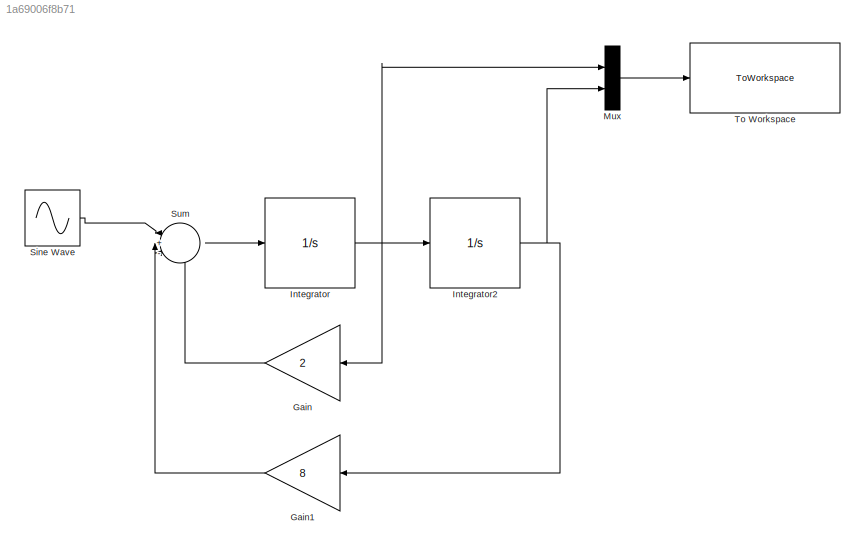
MODEL slx_1a69006f8b71
KIND model
CONFIG AbsTol = auto
CONFIG EnableMultiTasking = off
CONFIG FixedStep = auto
CONFIG MaxStep = auto
CONFIG MinStep = auto
CONFIG RelTol = 1e-3
CONFIG SampleTimeConstraint = Unconstrained
CONFIG SolverName = VariableStepAuto
CONFIG StartTime = 0.0
CONFIG StopTime = 25
BLOCK [Gain] Gain
  Gain = 2
BLOCK [Gain] Gain1
  Gain = 8
BLOCK [Integrator] Integrator
  Ports = [1, 1]
BLOCK [Integrator] Integrator2
  Ports = [1, 1]
BLOCK [Mux] Mux
  DisplayOption = bar
  Inputs = 2
  Ports = [2, 1]
BLOCK [Sin] Sine Wave
  Ports = [0, 1]
  SampleTime = 0.01
BLOCK [Sum] Sum
  Inputs = |+--
  Ports = [3, 1]
BLOCK [ToWorkspace] To Workspace
  FixptAsFi = on
  MaxDataPoints = inf
  Ports = [1]
  SampleTime = -1
  VariableName = simout
LINE Gain1:1 -> Sum:2
LINE Gain:1 -> Sum:3
NET Integrator2:1 -> Gain1:1, Mux:2
NET Integrator:1 -> Gain:1, Integrator2:1, Mux:1
LINE Mux:1 -> To Workspace:1
LINE Sine Wave:1 -> Sum:1
LINE Sum:1 -> Integrator:1
note: NET lines group one-source signal fan-out (src -> all destinations, sorted); 1:1 wires keep LINE
